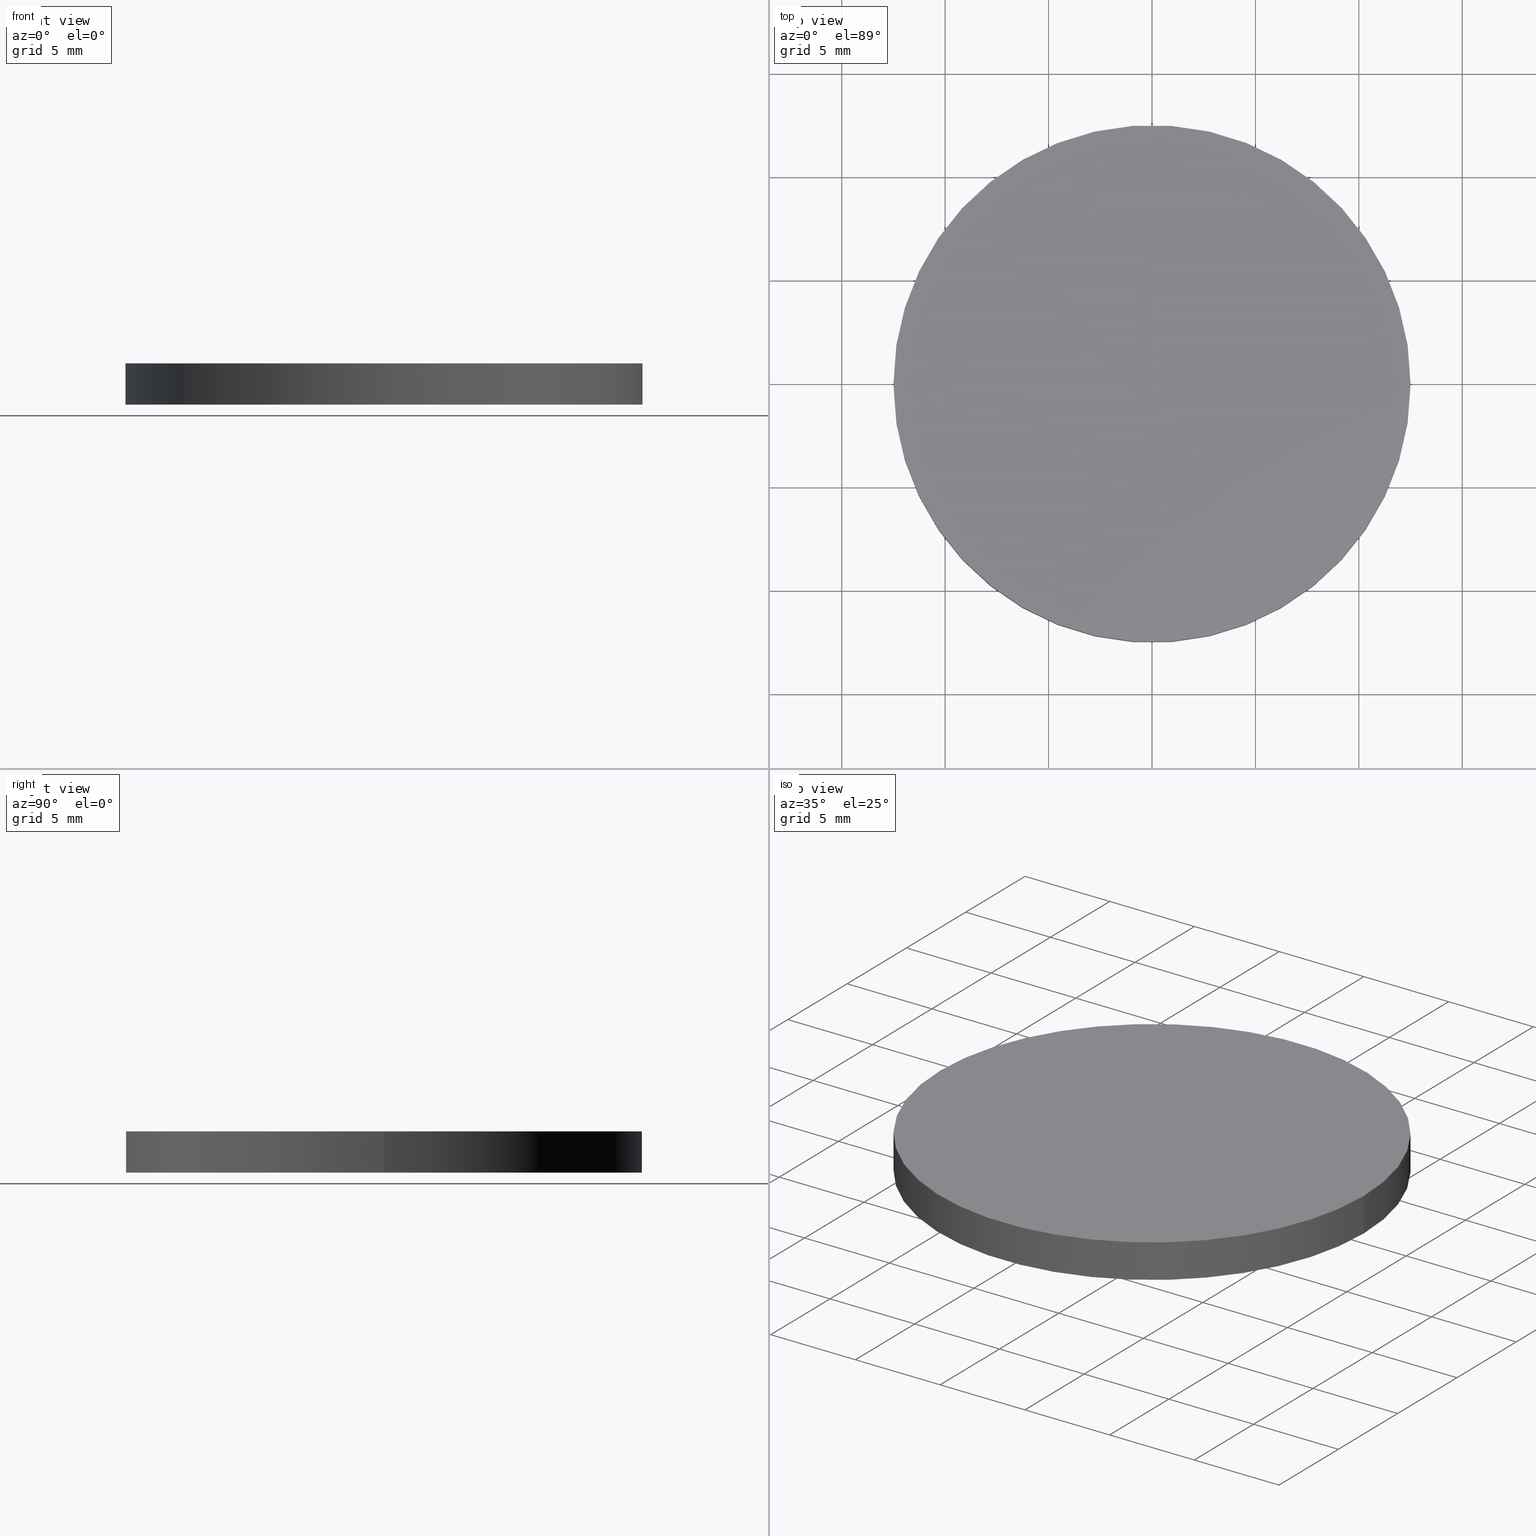
[diagram: canonical four-view strip — front | top / right | iso, engineering-drawing reading convention]
A machine part, canonical four-view strip (front | top / right | iso — engineering-drawing reading convention). The complete STEP part file that produces these views, byte-faithful:
ISO-10303-21;
HEADER;
FILE_DESCRIPTION (( 'STEP AP214' ),
    '1' );
FILE_NAME ('���2.STEP',
    '2020-03-06T05:59:48',
    ( '' ),
    ( '' ),
    'SwSTEP 2.0',
    'SolidWorks 2016',
    '' );
FILE_SCHEMA (( 'AUTOMOTIVE_DESIGN' ));
ENDSEC;

DATA;
#1 =( LENGTH_UNIT ( ) NAMED_UNIT ( * ) SI_UNIT ( .MILLI., .METRE. ) );
#2 = PRODUCT ( '���2', '���2', '', ( #9 ) ) ;
#3 = CARTESIAN_POINT ( 'NONE',  ( 0.0000000000000000000, 0.0000000000000000000, 2.000000000000000000 ) ) ;
#4 = CARTESIAN_POINT ( 'NONE',  ( 0.0000000000000000000, 0.0000000000000000000, 0.0000000000000000000 ) ) ;
#5 = FILL_AREA_STYLE ('',( #82 ) ) ;
#6 =( NAMED_UNIT ( * ) PLANE_ANGLE_UNIT ( ) SI_UNIT ( $, .RADIAN. ) );
#7 = COLOUR_RGB ( '',1.000000000000000000, 1.000000000000000000, 1.000000000000000000 ) ;
#8 = ORIENTED_EDGE ( 'NONE', *, *, #64, .F. ) ;
#9 = PRODUCT_CONTEXT ( 'NONE', #137, 'mechanical' ) ;
#10 = EDGE_CURVE ( 'NONE', #106, #87, #60, .T. ) ;
#11 = EDGE_CURVE ( 'NONE', #106, #34, #76, .T. ) ;
#12 = ORIENTED_EDGE ( 'NONE', *, *, #11, .T. ) ;
#13 = PRODUCT_DEFINITION ( 'δ֪', '', #51, #122 ) ;
#14 = AXIS2_PLACEMENT_3D ( 'NONE', #26, #43, #115 ) ;
#15 = UNCERTAINTY_MEASURE_WITH_UNIT (LENGTH_MEASURE( 1.000000000000000100E-005 ), #1, 'distance_accuracy_value', 'NONE');
#16 =( NAMED_UNIT ( * ) PLANE_ANGLE_UNIT ( ) SI_UNIT ( $, .RADIAN. ) );
#17 = FACE_OUTER_BOUND ( 'NONE', #90, .T. ) ;
#18 = FILL_AREA_STYLE_COLOUR ( '', #7 ) ;
#19 = CARTESIAN_POINT ( 'NONE',  ( 12.50000000000000000, 1.530808498934191500E-015, 0.0000000000000000000 ) ) ;
#20 = AXIS2_PLACEMENT_3D ( 'NONE', #62, #88, #50 ) ;
#21 = CARTESIAN_POINT ( 'NONE',  ( -12.50000000000000000, 0.0000000000000000000, 2.000000000000000000 ) ) ;
#22 =( LENGTH_UNIT ( ) NAMED_UNIT ( * ) SI_UNIT ( .MILLI., .METRE. ) );
#23 = ORIENTED_EDGE ( 'NONE', *, *, #10, .F. ) ;
#24 = PRODUCT_RELATED_PRODUCT_CATEGORY ( 'part', '', ( #2 ) ) ;
#25 = AXIS2_PLACEMENT_3D ( 'NONE', #125, #40, #94 ) ;
#26 = CARTESIAN_POINT ( 'NONE',  ( 0.0000000000000000000, 0.0000000000000000000, 0.0000000000000000000 ) ) ;
#27 = ORIENTED_EDGE ( 'NONE', *, *, #71, .T. ) ;
#28 = SURFACE_STYLE_USAGE ( .BOTH. , #89 ) ;
#29 = DIRECTION ( 'NONE',  ( -0.0000000000000000000, -0.0000000000000000000, -1.000000000000000000 ) ) ;
#30 = ORIENTED_EDGE ( 'NONE', *, *, #77, .T. ) ;
#31 = AXIS2_PLACEMENT_3D ( 'NONE', #129, #98, #35 ) ;
#32 = PRESENTATION_LAYER_ASSIGNMENT (  '', '', ( #103 ) ) ;
#33 = MECHANICAL_DESIGN_GEOMETRIC_PRESENTATION_REPRESENTATION (  '', ( #85 ), #39 ) ;
#34 = VERTEX_POINT ( 'NONE', #107 ) ;
#35 = DIRECTION ( 'NONE',  ( -1.000000000000000000, 0.0000000000000000000, 0.0000000000000000000 ) ) ;
#36 = DIRECTION ( 'NONE',  ( -0.0000000000000000000, -0.0000000000000000000, -1.000000000000000000 ) ) ;
#37 = FACE_OUTER_BOUND ( 'NONE', #111, .T. ) ;
#38 =( LENGTH_UNIT ( ) NAMED_UNIT ( * ) SI_UNIT ( .MILLI., .METRE. ) );
#39 =( GEOMETRIC_REPRESENTATION_CONTEXT ( 3 ) GLOBAL_UNCERTAINTY_ASSIGNED_CONTEXT ( ( #15 ) ) GLOBAL_UNIT_ASSIGNED_CONTEXT ( ( #1, #16, #105 ) ) REPRESENTATION_CONTEXT ( 'NONE', 'WORKASPACE' ) );
#40 = DIRECTION ( 'NONE',  ( -0.0000000000000000000, -0.0000000000000000000, -1.000000000000000000 ) ) ;
#41 = VECTOR ( 'NONE', #29, 1000.000000000000000 ) ;
#42 = ORIENTED_EDGE ( 'NONE', *, *, #71, .F. ) ;
#43 = DIRECTION ( 'NONE',  ( 0.0000000000000000000, 0.0000000000000000000, 1.000000000000000000 ) ) ;
#44 = CARTESIAN_POINT ( 'NONE',  ( 0.0000000000000000000, 0.0000000000000000000, 2.000000000000000000 ) ) ;
#45 = ORIENTED_EDGE ( 'NONE', *, *, #57, .T. ) ;
#46 = DIRECTION ( 'NONE',  ( 0.0000000000000000000, 0.0000000000000000000, 1.000000000000000000 ) ) ;
#47 = PRESENTATION_STYLE_ASSIGNMENT (( #123 ) ) ;
#48 = CARTESIAN_POINT ( 'NONE',  ( -12.50000000000000000, 0.0000000000000000000, 0.0000000000000000000 ) ) ;
#49 = CYLINDRICAL_SURFACE ( 'NONE', #25, 12.50000000000000000 ) ;
#50 = DIRECTION ( 'NONE',  ( 1.000000000000000000, 0.0000000000000000000, -0.0000000000000000000 ) ) ;
#51 = PRODUCT_DEFINITION_FORMATION_WITH_SPECIFIED_SOURCE ( '�κ�', '', #2, .NOT_KNOWN. ) ;
#52 = DIRECTION ( 'NONE',  ( 1.000000000000000000, 0.0000000000000000000, 0.0000000000000000000 ) ) ;
#53 = PLANE ( 'NONE',  #127 ) ;
#54 = VECTOR ( 'NONE', #36, 1000.000000000000000 ) ;
#55 = CARTESIAN_POINT ( 'NONE',  ( 0.0000000000000000000, 0.0000000000000000000, 0.0000000000000000000 ) ) ;
#56 =( NAMED_UNIT ( * ) SI_UNIT ( $, .STERADIAN. ) SOLID_ANGLE_UNIT ( ) );
#57 = EDGE_CURVE ( 'NONE', #66, #87, #86, .T. ) ;
#58 = FACE_OUTER_BOUND ( 'NONE', #109, .T. ) ;
#59 = AXIS2_PLACEMENT_3D ( 'NONE', #3, #78, #91 ) ;
#60 = LINE ( 'NONE', #21, #54 ) ;
#61 = ORIENTED_EDGE ( 'NONE', *, *, #57, .F. ) ;
#62 = CARTESIAN_POINT ( 'NONE',  ( 0.0000000000000000000, 0.0000000000000000000, 2.000000000000000000 ) ) ;
#63 = CLOSED_SHELL ( 'NONE', ( #113, #96, #81, #72 ) ) ;
#64 = EDGE_CURVE ( 'NONE', #34, #106, #138, .T. ) ;
#65 = ORIENTED_EDGE ( 'NONE', *, *, #11, .F. ) ;
#66 = VERTEX_POINT ( 'NONE', #19 ) ;
#67 = ORIENTED_EDGE ( 'NONE', *, *, #10, .T. ) ;
#68 = APPLICATION_PROTOCOL_DEFINITION ( 'draft international standard', 'automotive_design', 1998, #137 ) ;
#69 =( NAMED_UNIT ( * ) PLANE_ANGLE_UNIT ( ) SI_UNIT ( $, .RADIAN. ) );
#70 = DIRECTION ( 'NONE',  ( 1.000000000000000000, 0.0000000000000000000, 0.0000000000000000000 ) ) ;
#71 = EDGE_CURVE ( 'NONE', #34, #66, #101, .T. ) ;
#72 = ADVANCED_FACE ( 'NONE', ( #93 ), #53, .F. ) ;
#73 = CIRCLE ( 'NONE', #14, 12.50000000000000000 ) ;
#74 = UNCERTAINTY_MEASURE_WITH_UNIT (LENGTH_MEASURE( 1.000000000000000100E-005 ), #22, 'distance_accuracy_value', 'NONE');
#75 =( GEOMETRIC_REPRESENTATION_CONTEXT ( 3 ) GLOBAL_UNCERTAINTY_ASSIGNED_CONTEXT ( ( #133 ) ) GLOBAL_UNIT_ASSIGNED_CONTEXT ( ( #38, #69, #56 ) ) REPRESENTATION_CONTEXT ( 'NONE', 'WORKASPACE' ) );
#76 = CIRCLE ( 'NONE', #59, 12.50000000000000000 ) ;
#77 = EDGE_CURVE ( 'NONE', #87, #66, #73, .T. ) ;
#78 = DIRECTION ( 'NONE',  ( 0.0000000000000000000, 0.0000000000000000000, 1.000000000000000000 ) ) ;
#79 = CYLINDRICAL_SURFACE ( 'NONE', #31, 12.50000000000000000 ) ;
#80 = APPLICATION_CONTEXT ( 'automotive_design' ) ;
#81 = ADVANCED_FACE ( 'NONE', ( #37 ), #102, .T. ) ;
#82 = FILL_AREA_STYLE_COLOUR ( '', #95 ) ;
#83 = AXIS2_PLACEMENT_3D ( 'NONE', #4, #117, #52 ) ;
#84 = SURFACE_STYLE_FILL_AREA ( #130 ) ;
#85 = STYLED_ITEM ( 'NONE', ( #139 ), #104 ) ;
#86 = CIRCLE ( 'NONE', #83, 12.50000000000000000 ) ;
#87 = VERTEX_POINT ( 'NONE', #48 ) ;
#88 = DIRECTION ( 'NONE',  ( 0.0000000000000000000, 0.0000000000000000000, 1.000000000000000000 ) ) ;
#89 = SURFACE_SIDE_STYLE ('',( #84 ) ) ;
#90 = EDGE_LOOP ( 'NONE', ( #42, #65, #67, #30 ) ) ;
#91 = DIRECTION ( 'NONE',  ( 1.000000000000000000, 0.0000000000000000000, 0.0000000000000000000 ) ) ;
#92 = DIRECTION ( 'NONE',  ( 1.000000000000000000, 0.0000000000000000000, 0.0000000000000000000 ) ) ;
#93 = FACE_OUTER_BOUND ( 'NONE', #116, .T. ) ;
#94 = DIRECTION ( 'NONE',  ( -1.000000000000000000, 0.0000000000000000000, 0.0000000000000000000 ) ) ;
#95 = COLOUR_RGB ( '',1.000000000000000000, 1.000000000000000000, 1.000000000000000000 ) ;
#96 = ADVANCED_FACE ( 'NONE', ( #17 ), #79, .T. ) ;
#97 = APPLICATION_PROTOCOL_DEFINITION ( 'draft international standard', 'automotive_design', 1998, #80 ) ;
#98 = DIRECTION ( 'NONE',  ( -0.0000000000000000000, -0.0000000000000000000, -1.000000000000000000 ) ) ;
#99 = AXIS2_PLACEMENT_3D ( 'NONE', #44, #46, #92 ) ;
#100 = SURFACE_STYLE_FILL_AREA ( #5 ) ;
#101 = LINE ( 'NONE', #120, #41 ) ;
#102 = PLANE ( 'NONE',  #20 ) ;
#103 = STYLED_ITEM ( 'NONE', ( #47 ), #126 ) ;
#104 = MANIFOLD_SOLID_BREP ( '͹̨-����1', #63 ) ;
#105 =( NAMED_UNIT ( * ) SI_UNIT ( $, .STERADIAN. ) SOLID_ANGLE_UNIT ( ) );
#106 = VERTEX_POINT ( 'NONE', #136 ) ;
#107 = CARTESIAN_POINT ( 'NONE',  ( 12.50000000000000000, 1.530808498934191500E-015, 2.000000000000000000 ) ) ;
#108 = DIRECTION ( 'NONE',  ( 1.000000000000000000, 0.0000000000000000000, -0.0000000000000000000 ) ) ;
#109 = EDGE_LOOP ( 'NONE', ( #8, #27, #45, #23 ) ) ;
#110 = SURFACE_SIDE_STYLE ('',( #100 ) ) ;
#111 = EDGE_LOOP ( 'NONE', ( #12, #112 ) ) ;
#112 = ORIENTED_EDGE ( 'NONE', *, *, #64, .T. ) ;
#113 = ADVANCED_FACE ( 'NONE', ( #58 ), #49, .T. ) ;
#114 = ORIENTED_EDGE ( 'NONE', *, *, #77, .F. ) ;
#115 = DIRECTION ( 'NONE',  ( 1.000000000000000000, 0.0000000000000000000, 0.0000000000000000000 ) ) ;
#116 = EDGE_LOOP ( 'NONE', ( #114, #61 ) ) ;
#117 = DIRECTION ( 'NONE',  ( 0.0000000000000000000, 0.0000000000000000000, 1.000000000000000000 ) ) ;
#118 = SHAPE_DEFINITION_REPRESENTATION ( #124, #126 ) ;
#119 = PRESENTATION_LAYER_ASSIGNMENT (  '', '', ( #85 ) ) ;
#120 = CARTESIAN_POINT ( 'NONE',  ( 12.50000000000000000, 1.530808498934191500E-015, 2.000000000000000000 ) ) ;
#121 =( NAMED_UNIT ( * ) SI_UNIT ( $, .STERADIAN. ) SOLID_ANGLE_UNIT ( ) );
#122 = PRODUCT_DEFINITION_CONTEXT ( 'detailed design', #80, 'design' ) ;
#123 = SURFACE_STYLE_USAGE ( .BOTH. , #110 ) ;
#124 = PRODUCT_DEFINITION_SHAPE ( 'NONE', 'NONE',  #13 ) ;
#125 = CARTESIAN_POINT ( 'NONE',  ( 0.0000000000000000000, 0.0000000000000000000, 2.000000000000000000 ) ) ;
#126 = ADVANCED_BREP_SHAPE_REPRESENTATION ( '���2', ( #104, #128 ), #75 ) ;
#127 = AXIS2_PLACEMENT_3D ( 'NONE', #134, #132, #108 ) ;
#128 = AXIS2_PLACEMENT_3D ( 'NONE', #55, #135, #70 ) ;
#129 = CARTESIAN_POINT ( 'NONE',  ( 0.0000000000000000000, 0.0000000000000000000, 2.000000000000000000 ) ) ;
#130 = FILL_AREA_STYLE ('',( #18 ) ) ;
#131 = MECHANICAL_DESIGN_GEOMETRIC_PRESENTATION_REPRESENTATION (  '', ( #103 ), #140 ) ;
#132 = DIRECTION ( 'NONE',  ( 0.0000000000000000000, 0.0000000000000000000, 1.000000000000000000 ) ) ;
#133 = UNCERTAINTY_MEASURE_WITH_UNIT (LENGTH_MEASURE( 1.000000000000000100E-005 ), #38, 'distance_accuracy_value', 'NONE');
#134 = CARTESIAN_POINT ( 'NONE',  ( 0.0000000000000000000, 0.0000000000000000000, 0.0000000000000000000 ) ) ;
#135 = DIRECTION ( 'NONE',  ( 0.0000000000000000000, 0.0000000000000000000, 1.000000000000000000 ) ) ;
#136 = CARTESIAN_POINT ( 'NONE',  ( -12.50000000000000000, 0.0000000000000000000, 2.000000000000000000 ) ) ;
#137 = APPLICATION_CONTEXT ( 'automotive_design' ) ;
#138 = CIRCLE ( 'NONE', #99, 12.50000000000000000 ) ;
#139 = PRESENTATION_STYLE_ASSIGNMENT (( #28 ) ) ;
#140 =( GEOMETRIC_REPRESENTATION_CONTEXT ( 3 ) GLOBAL_UNCERTAINTY_ASSIGNED_CONTEXT ( ( #74 ) ) GLOBAL_UNIT_ASSIGNED_CONTEXT ( ( #22, #6, #121 ) ) REPRESENTATION_CONTEXT ( 'NONE', 'WORKASPACE' ) );
ENDSEC;
END-ISO-10303-21;
